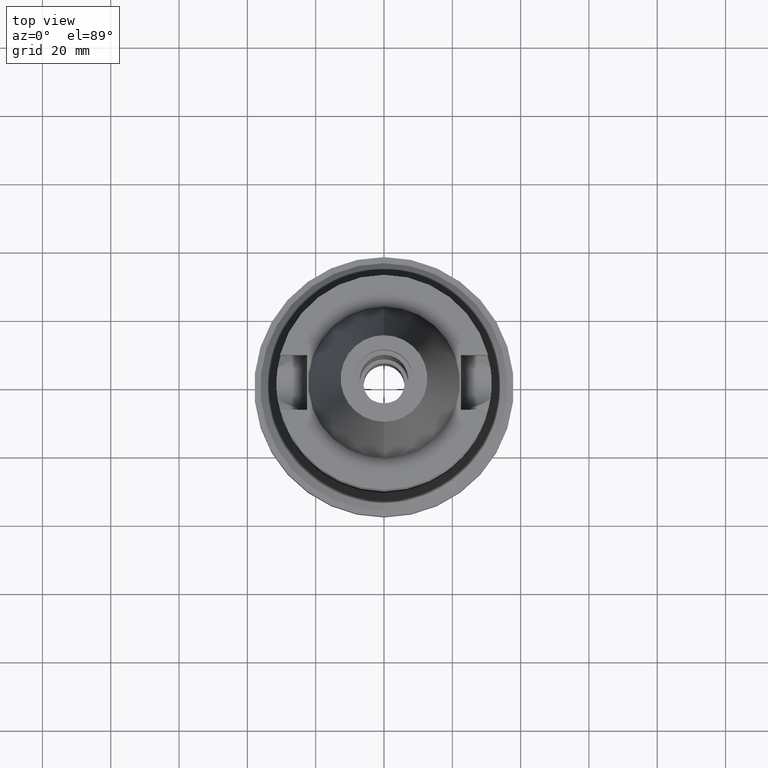
[diagram: clean part render]
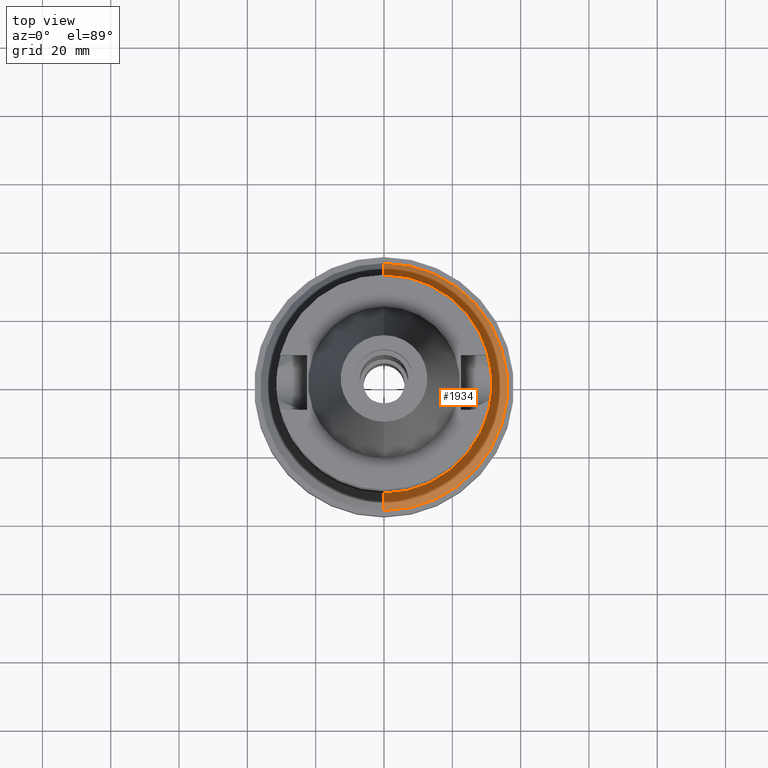
[diagram: same view with one face highlighted and labeled with its STEP entity id]
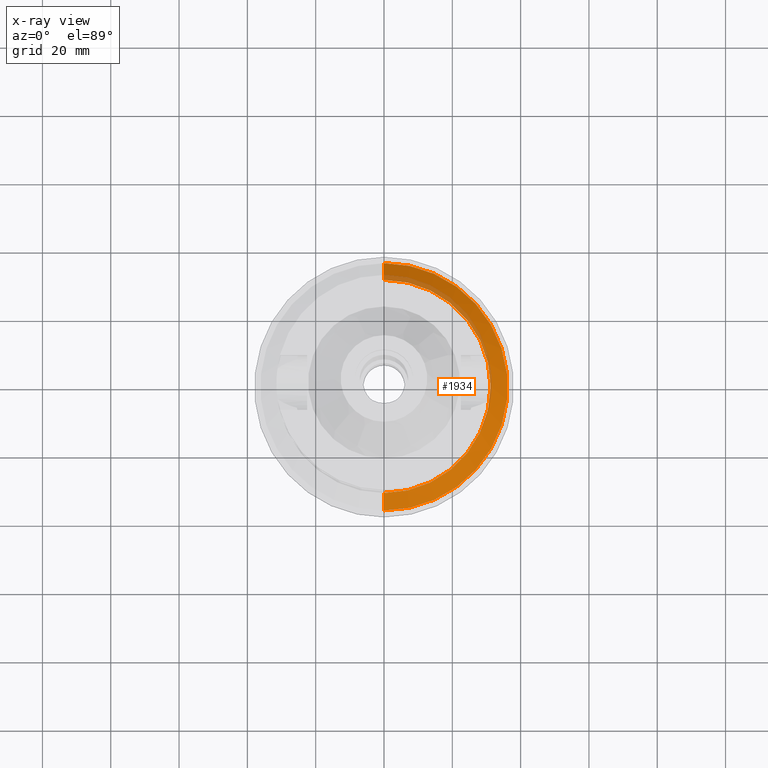
[diagram: x-ray of the same camera — body ghosted, the highlighted face saturated]
A machine part, top view. The second image highlights one B-rep face of the part: STEP entity #1934.
The next image is the same camera in x-ray: the body ghosted, the highlighted face saturated — about 11% of this face is hidden behind the body in this view.
In plain terms, the highlighted conical surface has half-angle 45 deg.
Its self-contained STEP definition (entity closure, byte-faithful):
#672=DIRECTION('',(0.E0,7.071067811865E-1,-7.071067811865E-1));
#673=VECTOR('',#672,7.071067811865E0);
#674=CARTESIAN_POINT('',(0.E0,3.12E1,-7.E1));
#675=LINE('',#674,#673);
#679=CARTESIAN_POINT('',(0.E0,0.E0,-7.E1));
#680=DIRECTION('',(0.E0,0.E0,1.E0));
#681=DIRECTION('',(0.E0,-1.E0,0.E0));
#682=AXIS2_PLACEMENT_3D('',#679,#680,#681);
#695=DIRECTION('',(0.E0,-7.071067811866E-1,-7.071067811865E-1));
#696=VECTOR('',#695,7.071067811865E0);
#697=CARTESIAN_POINT('',(0.E0,-3.12E1,-7.E1));
#698=LINE('',#697,#696);
#718=CARTESIAN_POINT('',(0.E0,0.E0,-7.5E1));
#719=DIRECTION('',(0.E0,0.E0,1.E0));
#720=DIRECTION('',(0.E0,-1.E0,0.E0));
#721=AXIS2_PLACEMENT_3D('',#718,#719,#720);
#1336=CARTESIAN_POINT('',(0.E0,-3.62E1,-7.5E1));
#1337=CARTESIAN_POINT('',(0.E0,3.62E1,-7.5E1));
#1338=VERTEX_POINT('',#1336);
#1339=VERTEX_POINT('',#1337);
#1340=CARTESIAN_POINT('',(0.E0,3.12E1,-7.E1));
#1341=VERTEX_POINT('',#1340);
#1342=CARTESIAN_POINT('',(0.E0,-3.12E1,-7.E1));
#1343=VERTEX_POINT('',#1342);
#1920=CARTESIAN_POINT('',(0.E0,0.E0,-7.25E1));
#1921=DIRECTION('',(0.E0,0.E0,-1.E0));
#1922=DIRECTION('',(0.E0,-1.E0,0.E0));
#1923=AXIS2_PLACEMENT_3D('',#1920,#1921,#1922);
#1924=CONICAL_SURFACE('',#1923,3.37E1,4.5E1);
#1926=ORIENTED_EDGE('',*,*,#1925,.T.);
#1928=ORIENTED_EDGE('',*,*,#1927,.F.);
#1930=ORIENTED_EDGE('',*,*,#1929,.F.);
#1931=ORIENTED_EDGE('',*,*,#1913,.T.);
#1932=EDGE_LOOP('',(#1926,#1928,#1930,#1931));
#1933=FACE_OUTER_BOUND('',#1932,.F.);
#683=CIRCLE('',#682,3.12E1);
#722=CIRCLE('',#721,3.62E1);
#1913=EDGE_CURVE('',#1343,#1341,#683,.T.);
#1925=EDGE_CURVE('',#1341,#1339,#675,.T.);
#1927=EDGE_CURVE('',#1338,#1339,#722,.T.);
#1929=EDGE_CURVE('',#1343,#1338,#698,.T.);
#1934=ADVANCED_FACE('',(#1933),#1924,.T.);